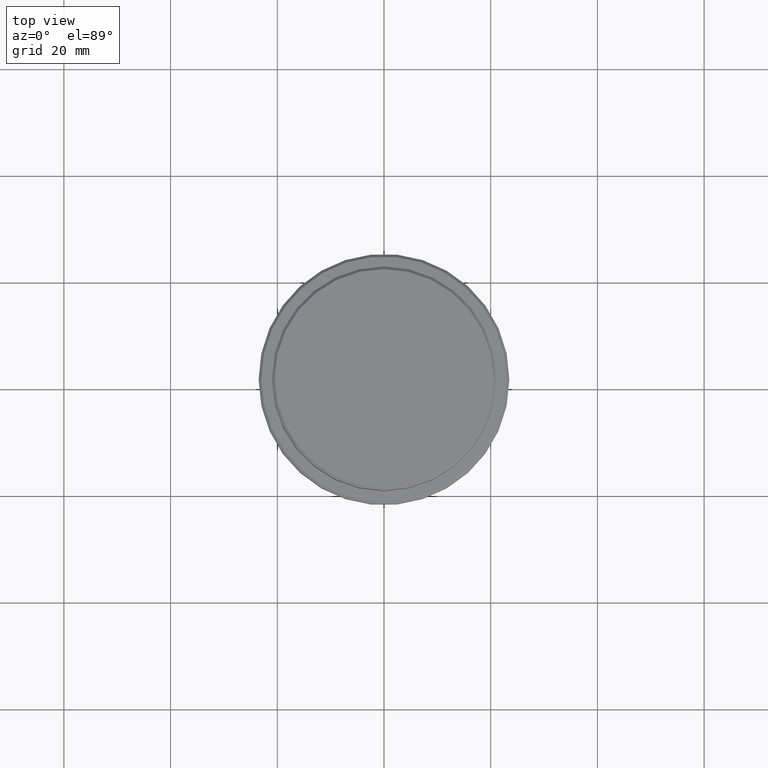
[diagram: clean part render]
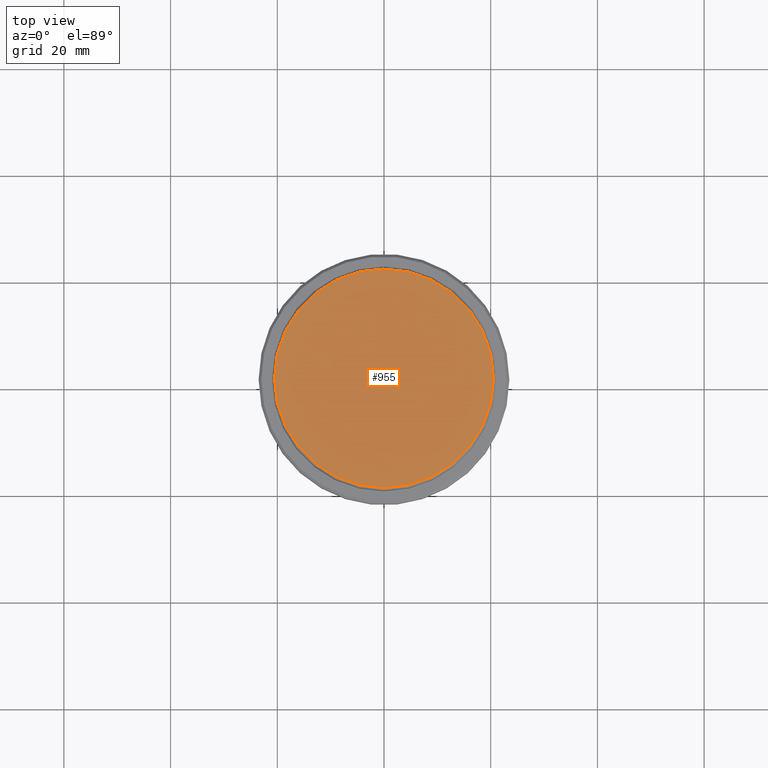
[diagram: same view with one face highlighted and labeled with its STEP entity id]
A machine part, top view. The second image highlights one B-rep face of the part: STEP entity #955.
In plain terms, the highlighted planar face has unit normal (0, -0, 1).
Its self-contained STEP definition (entity closure, byte-faithful):
#91 = CIRCLE ( 'NONE', #856, 20.50000000000001776 ) ;
#96 = DIRECTION ( 'NONE',  ( 1.000000000000000000, 0.000000000000000000, 0.000000000000000000 ) ) ;
#99 = CARTESIAN_POINT ( 'NONE',  ( 0.000000000000000000, 0.000000000000000000, 0.000000000000000000 ) ) ;
#117 = DIRECTION ( 'NONE',  ( 1.000000000000000000, 0.000000000000000000, 0.000000000000000000 ) ) ;
#119 = CARTESIAN_POINT ( 'NONE',  ( -20.50000000000001776, 0.000000000000000000, 0.000000000000000000 ) ) ;
#253 = ORIENTED_EDGE ( 'NONE', *, *, #1059, .T. ) ;
#308 = PLANE ( 'NONE',  #1412 ) ;
#359 = CIRCLE ( 'NONE', #958, 20.50000000000001776 ) ;
#457 = DIRECTION ( 'NONE',  ( 1.000000000000000000, 0.000000000000000000, 0.000000000000000000 ) ) ;
#540 = DIRECTION ( 'NONE',  ( -0.000000000000000000, -0.000000000000000000, 1.000000000000000000 ) ) ;
#546 = CARTESIAN_POINT ( 'NONE',  ( 0.000000000000000000, 0.000000000000000000, 0.000000000000000000 ) ) ;
#585 = ORIENTED_EDGE ( 'NONE', *, *, #1032, .T. ) ;
#646 = CARTESIAN_POINT ( 'NONE',  ( 0.000000000000000000, 0.000000000000000000, 0.000000000000000000 ) ) ;
#664 = DIRECTION ( 'NONE',  ( -0.000000000000000000, -0.000000000000000000, 1.000000000000000000 ) ) ;
#772 = VERTEX_POINT ( 'NONE', #1105 ) ;
#815 = VERTEX_POINT ( 'NONE', #119 ) ;
#828 = FACE_OUTER_BOUND ( 'NONE', #1319, .T. ) ;
#856 = AXIS2_PLACEMENT_3D ( 'NONE', #546, #540, #117 ) ;
#955 = ADVANCED_FACE ( 'NONE', ( #828 ), #308, .T. ) ;
#958 = AXIS2_PLACEMENT_3D ( 'NONE', #646, #664, #457 ) ;
#1032 = EDGE_CURVE ( 'NONE', #815, #772, #359, .T. ) ;
#1059 = EDGE_CURVE ( 'NONE', #772, #815, #91, .T. ) ;
#1105 = CARTESIAN_POINT ( 'NONE',  ( 20.50000000000001776, 2.541142108230759057E-15, 0.000000000000000000 ) ) ;
#1267 = DIRECTION ( 'NONE',  ( 0.000000000000000000, -0.000000000000000000, 1.000000000000000000 ) ) ;
#1319 = EDGE_LOOP ( 'NONE', ( #585, #253 ) ) ;
#1412 = AXIS2_PLACEMENT_3D ( 'NONE', #99, #1267, #96 ) ;